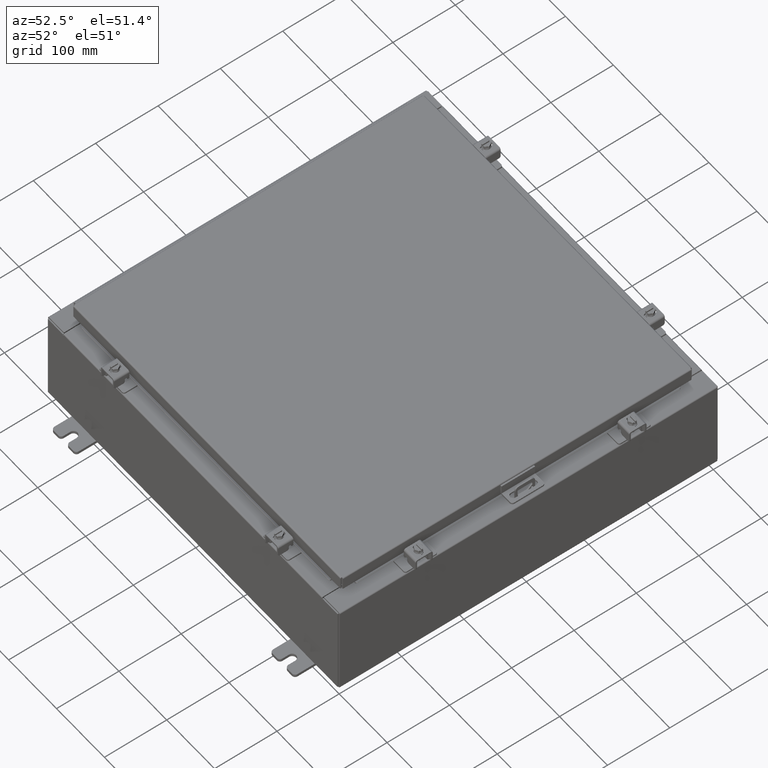
[diagram: clean part render]
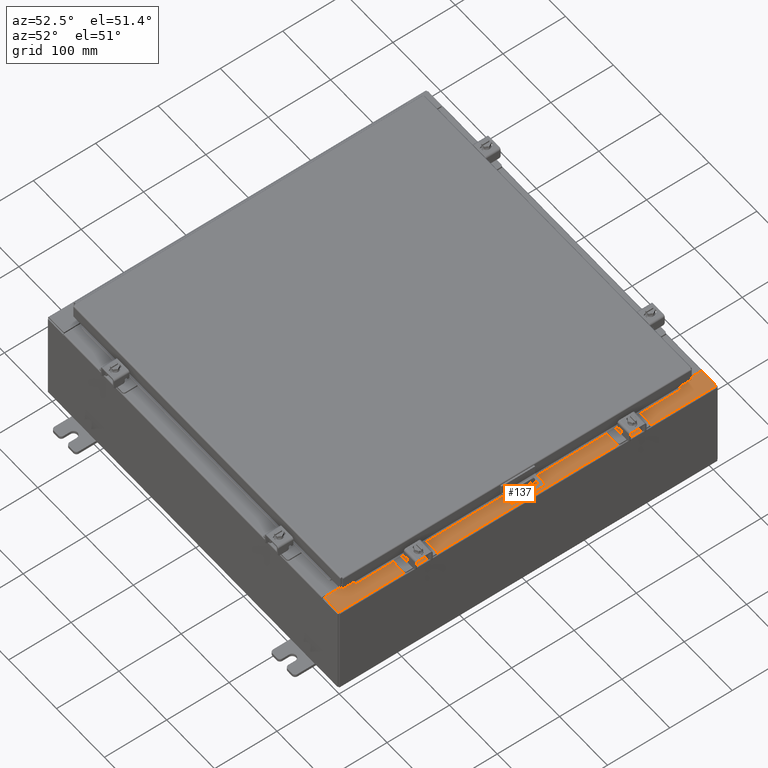
[diagram: same view with one face highlighted and labeled with its STEP entity id]
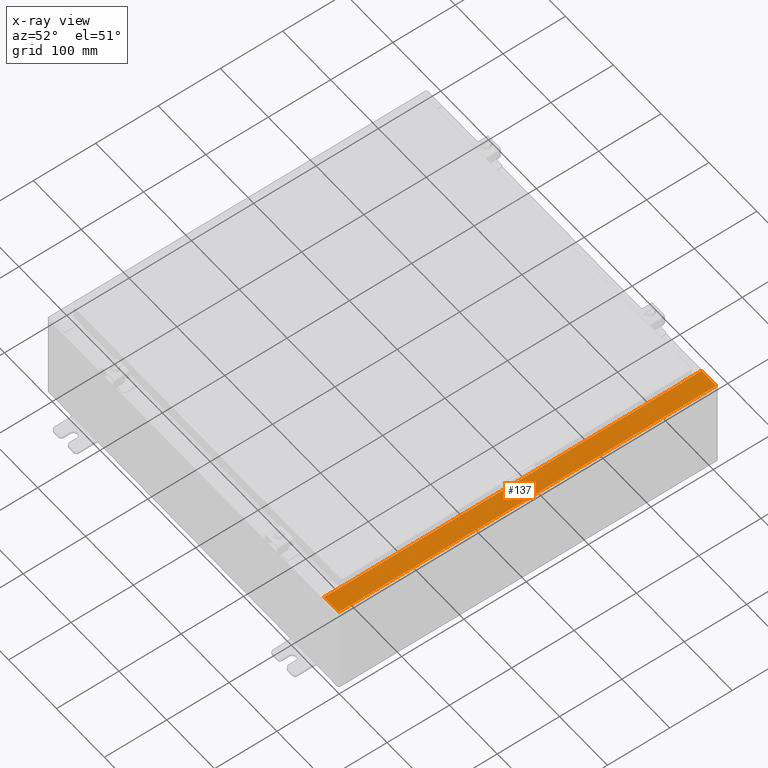
[diagram: x-ray of the same camera — body ghosted, the highlighted face saturated]
A machine part, auxiliary view. The second image highlights one B-rep face of the part: STEP entity #137.
The next image is the same camera in x-ray: the body ghosted, the highlighted face saturated — about 0% of this face is hidden behind the body in this view.
In plain terms, the highlighted planar face has unit normal (-0, 0, -1).
Its self-contained STEP definition (entity closure, byte-faithful):
#137 = ADVANCED_FACE ( 'NONE', ( #4403 ), #24521, .F. ) ;
#570 = DIRECTION ( 'NONE',  ( -1.000000000000000000, 0.0000000000000000000, 0.0000000000000000000 ) ) ;
#701 = VERTEX_POINT ( 'NONE', #11863 ) ;
#793 = VERTEX_POINT ( 'NONE', #17216 ) ;
#1021 = VECTOR ( 'NONE', #2756, 39.37007874015748100 ) ;
#1628 = LINE ( 'NONE', #5706, #4230 ) ;
#1722 = VERTEX_POINT ( 'NONE', #20805 ) ;
#1780 = VECTOR ( 'NONE', #30583, 39.37007874015748100 ) ;
#2328 = CARTESIAN_POINT ( 'NONE',  ( 10.71270000000002100, 10.59374999999999300, 5.925300000000008000 ) ) ;
#2628 = LINE ( 'NONE', #21400, #1021 ) ;
#2650 = AXIS2_PLACEMENT_3D ( 'NONE', #27244, #15027, #8380 ) ;
#2697 = DIRECTION ( 'NONE',  ( -1.000000000000000000, 0.0000000000000000000, 2.170286390199955400E-014 ) ) ;
#2756 = DIRECTION ( 'NONE',  ( 0.0000000000000000000, -1.000000000000000000, 0.0000000000000000000 ) ) ;
#3261 = AXIS2_PLACEMENT_3D ( 'NONE', #16484, #19234, #28909 ) ;
#4230 = VECTOR ( 'NONE', #570, 39.37007874015748100 ) ;
#4363 = VECTOR ( 'NONE', #18257, 39.37007874015748100 ) ;
#4403 = FACE_OUTER_BOUND ( 'NONE', #8976, .T. ) ;
#4905 = ORIENTED_EDGE ( 'NONE', *, *, #20062, .F. ) ;
#5391 = CARTESIAN_POINT ( 'NONE',  ( 10.69970000000002000, 0.0000000000000000000, 5.925300000000009800 ) ) ;
#5532 = ORIENTED_EDGE ( 'NONE', *, *, #8834, .T. ) ;
#5706 = CARTESIAN_POINT ( 'NONE',  ( 10.75005000000002100, -10.59375000000000200, 5.925300000000008000 ) ) ;
#5855 = VECTOR ( 'NONE', #17579, 39.37007874015748100 ) ;
#6405 = CARTESIAN_POINT ( 'NONE',  ( 10.75005000000002100, -10.63110000000000200, 5.925300000000009800 ) ) ;
#6495 = VECTOR ( 'NONE', #18046, 39.37007874015748100 ) ;
#6657 = CARTESIAN_POINT ( 'NONE',  ( 11.91230000000001800, 11.92529999999999600, 5.925300000000001800 ) ) ;
#7098 = DIRECTION ( 'NONE',  ( 1.000000000000000000, 0.0000000000000000000, -2.170286390199955400E-014 ) ) ;
#7151 = ORIENTED_EDGE ( 'NONE', *, *, #21935, .F. ) ;
#7703 = EDGE_CURVE ( 'NONE', #30927, #1722, #19434, .T. ) ;
#8380 = DIRECTION ( 'NONE',  ( -1.000000000000000000, 0.0000000000000000000, 7.132762385546384700E-015 ) ) ;
#8690 = CIRCLE ( 'NONE', #24610, 0.01867499999999949400 ) ;
#8834 = EDGE_CURVE ( 'NONE', #13834, #17249, #22249, .T. ) ;
#8891 = CARTESIAN_POINT ( 'NONE',  ( 10.69970000000002000, 11.92529999999999600, 5.925300000000009800 ) ) ;
#8976 = EDGE_LOOP ( 'NONE', ( #12185, #32299, #5532, #29070, #17706, #10807, #23499, #17343, #15390, #27845, #4905, #7151 ) ) ;
#9501 = VECTOR ( 'NONE', #2697, 39.37007874015748100 ) ;
#9658 = EDGE_CURVE ( 'NONE', #29901, #25492, #28868, .T. ) ;
#9895 = VERTEX_POINT ( 'NONE', #8891 ) ;
#10292 = CARTESIAN_POINT ( 'NONE',  ( 11.91230000000001800, -11.92530000000000400, 5.925300000000001800 ) ) ;
#10501 = CARTESIAN_POINT ( 'NONE',  ( 10.69970000000002000, -11.92530000000000400, 5.925300000000009800 ) ) ;
#10807 = ORIENTED_EDGE ( 'NONE', *, *, #31977, .T. ) ;
#11863 = CARTESIAN_POINT ( 'NONE',  ( 10.69970000000002000, -10.63110000000000200, 5.925300000000009800 ) ) ;
#12039 = EDGE_CURVE ( 'NONE', #30425, #17249, #16069, .T. ) ;
#12185 = ORIENTED_EDGE ( 'NONE', *, *, #31478, .F. ) ;
#13172 = EDGE_CURVE ( 'NONE', #30425, #9895, #32062, .T. ) ;
#13539 = CARTESIAN_POINT ( 'NONE',  ( 10.71270000000002100, -10.59375000000000200, 5.925300000000008000 ) ) ;
#13834 = VERTEX_POINT ( 'NONE', #10501 ) ;
#14320 = CARTESIAN_POINT ( 'NONE',  ( 4.252457061909019600E-014, 11.92529999999999600, 5.925300000000087100 ) ) ;
#14763 = DIRECTION ( 'NONE',  ( 7.132762385546384700E-015, 0.0000000000000000000, 1.000000000000000000 ) ) ;
#15027 = DIRECTION ( 'NONE',  ( -7.132762385546384700E-015, 0.0000000000000000000, -1.000000000000000000 ) ) ;
#15383 = VECTOR ( 'NONE', #7098, 39.37007874015748100 ) ;
#15390 = ORIENTED_EDGE ( 'NONE', *, *, #17926, .F. ) ;
#16016 = VECTOR ( 'NONE', #18678, 39.37007874015748100 ) ;
#16069 = LINE ( 'NONE', #29861, #6495 ) ;
#16484 = CARTESIAN_POINT ( 'NONE',  ( 10.75005000000002100, 10.61242499999999300, 5.925300000000008000 ) ) ;
#17060 = CIRCLE ( 'NONE', #3261, 0.01867499999999949400 ) ;
#17216 = CARTESIAN_POINT ( 'NONE',  ( 10.75005000000002100, -10.59375000000000200, 5.925300000000009800 ) ) ;
#17249 = VERTEX_POINT ( 'NONE', #10292 ) ;
#17343 = ORIENTED_EDGE ( 'NONE', *, *, #25761, .F. ) ;
#17579 = DIRECTION ( 'NONE',  ( 1.000000000000000000, 0.0000000000000000000, 0.0000000000000000000 ) ) ;
#17694 = CARTESIAN_POINT ( 'NONE',  ( 10.75005000000002100, 10.59374999999999300, 5.925300000000009800 ) ) ;
#17706 = ORIENTED_EDGE ( 'NONE', *, *, #13172, .T. ) ;
#17708 = CARTESIAN_POINT ( 'NONE',  ( 10.71270000000002100, -10.59375000000000200, 5.925300000000008000 ) ) ;
#17920 = CARTESIAN_POINT ( 'NONE',  ( 10.75005000000002100, 10.63109999999999300, 5.925300000000008000 ) ) ;
#17926 = EDGE_CURVE ( 'NONE', #25492, #23910, #31361, .T. ) ;
#18046 = DIRECTION ( 'NONE',  ( -0.0000000000000000000, -1.000000000000000000, -0.0000000000000000000 ) ) ;
#18212 = CARTESIAN_POINT ( 'NONE',  ( 10.75005000000002100, -10.61242500000000200, 5.925300000000008000 ) ) ;
#18257 = DIRECTION ( 'NONE',  ( 0.0000000000000000000, -1.000000000000000000, 0.0000000000000000000 ) ) ;
#18678 = DIRECTION ( 'NONE',  ( -0.0000000000000000000, 1.000000000000000000, -0.0000000000000000000 ) ) ;
#19009 = CARTESIAN_POINT ( 'NONE',  ( 4.252457061909019600E-014, -11.92530000000000400, 5.925300000000087100 ) ) ;
#19234 = DIRECTION ( 'NONE',  ( 7.132762385546384700E-015, 0.0000000000000000000, 1.000000000000000000 ) ) ;
#19434 = LINE ( 'NONE', #17920, #9501 ) ;
#20062 = EDGE_CURVE ( 'NONE', #793, #29901, #1628, .T. ) ;
#20805 = CARTESIAN_POINT ( 'NONE',  ( 10.69970000000002000, 10.63109999999999500, 5.925300000000009800 ) ) ;
#21056 = CARTESIAN_POINT ( 'NONE',  ( 10.75005000000002100, 10.63109999999999300, 5.925300000000009800 ) ) ;
#21382 = VERTEX_POINT ( 'NONE', #6405 ) ;
#21400 = CARTESIAN_POINT ( 'NONE',  ( 10.69970000000002000, 0.0000000000000000000, 5.925300000000009800 ) ) ;
#21844 = LINE ( 'NONE', #5391, #4363 ) ;
#21935 = EDGE_CURVE ( 'NONE', #21382, #793, #8690, .T. ) ;
#22140 = DIRECTION ( 'NONE',  ( 1.000000000000000000, 0.0000000000000000000, -7.132762385546384700E-015 ) ) ;
#22249 = LINE ( 'NONE', #19009, #25609 ) ;
#22793 = EDGE_CURVE ( 'NONE', #701, #13834, #21844, .T. ) ;
#23499 = ORIENTED_EDGE ( 'NONE', *, *, #7703, .F. ) ;
#23910 = VERTEX_POINT ( 'NONE', #17694 ) ;
#24521 = PLANE ( 'NONE',  #2650 ) ;
#24610 = AXIS2_PLACEMENT_3D ( 'NONE', #18212, #14763, #28168 ) ;
#25492 = VERTEX_POINT ( 'NONE', #28414 ) ;
#25609 = VECTOR ( 'NONE', #22140, 39.37007874015748100 ) ;
#25694 = CARTESIAN_POINT ( 'NONE',  ( 10.69970000000002000, -10.63110000000000200, 5.925300000000008900 ) ) ;
#25761 = EDGE_CURVE ( 'NONE', #23910, #30927, #17060, .T. ) ;
#27244 = CARTESIAN_POINT ( 'NONE',  ( 4.252457061909019600E-014, 0.0000000000000000000, 5.925300000000087100 ) ) ;
#27845 = ORIENTED_EDGE ( 'NONE', *, *, #9658, .F. ) ;
#28168 = DIRECTION ( 'NONE',  ( 1.000000000000000000, 0.0000000000000000000, 0.0000000000000000000 ) ) ;
#28414 = CARTESIAN_POINT ( 'NONE',  ( 10.71270000000002100, 10.59374999999999300, 5.925300000000008000 ) ) ;
#28868 = LINE ( 'NONE', #17708, #16016 ) ;
#28909 = DIRECTION ( 'NONE',  ( 1.000000000000000000, 0.0000000000000000000, 0.0000000000000000000 ) ) ;
#29070 = ORIENTED_EDGE ( 'NONE', *, *, #12039, .F. ) ;
#29861 = CARTESIAN_POINT ( 'NONE',  ( 11.91230000000001800, -11.92530000000000400, 5.925300000000001800 ) ) ;
#29901 = VERTEX_POINT ( 'NONE', #13539 ) ;
#30425 = VERTEX_POINT ( 'NONE', #6657 ) ;
#30583 = DIRECTION ( 'NONE',  ( -1.000000000000000000, 0.0000000000000000000, 7.132762385546384700E-015 ) ) ;
#30927 = VERTEX_POINT ( 'NONE', #21056 ) ;
#31361 = LINE ( 'NONE', #2328, #5855 ) ;
#31478 = EDGE_CURVE ( 'NONE', #701, #21382, #31896, .T. ) ;
#31896 = LINE ( 'NONE', #25694, #15383 ) ;
#31977 = EDGE_CURVE ( 'NONE', #9895, #1722, #2628, .T. ) ;
#32062 = LINE ( 'NONE', #14320, #1780 ) ;
#32299 = ORIENTED_EDGE ( 'NONE', *, *, #22793, .T. ) ;